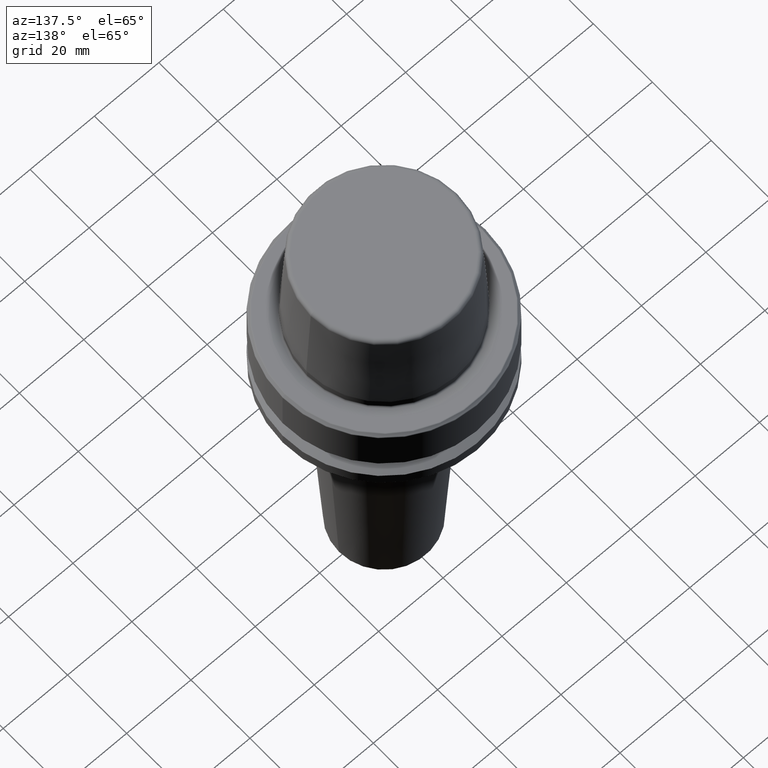
[diagram: clean part render]
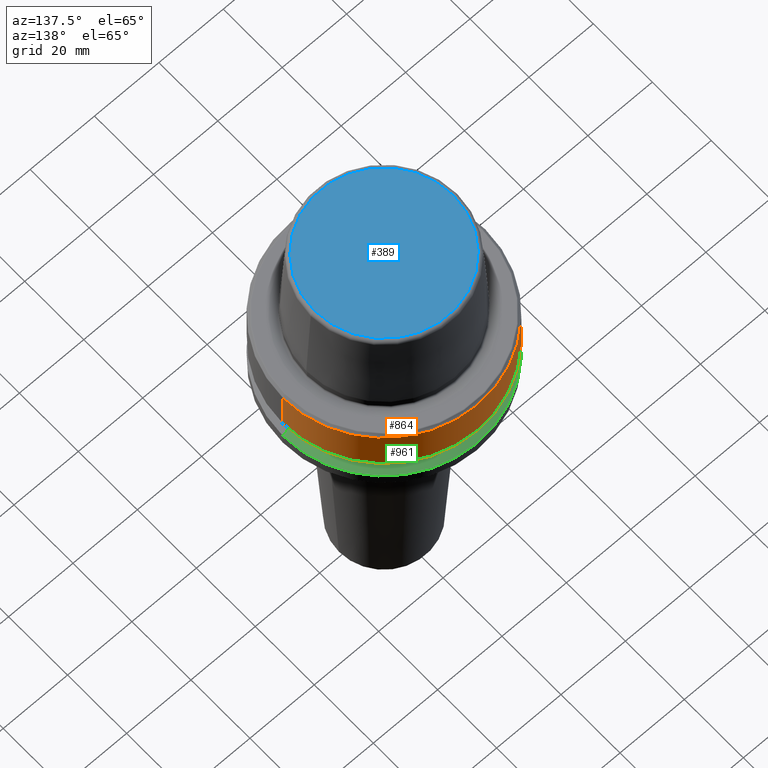
[diagram: same view with three faces highlighted in distinct colors, each labeled with its STEP entity id]
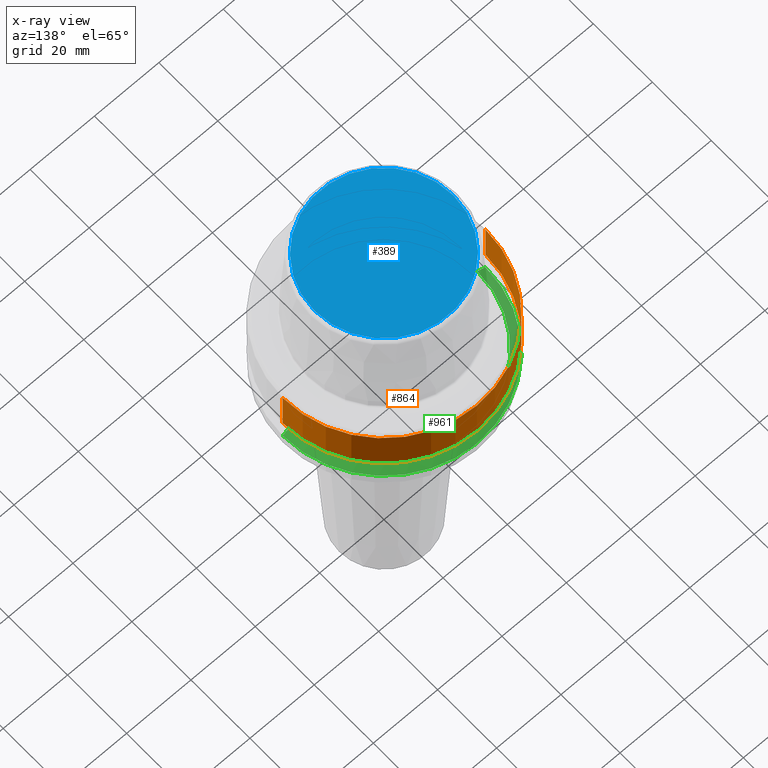
[diagram: x-ray of the same camera — body ghosted, the three highlighted faces saturated]
A machine part, auxiliary view with three faces highlighted in distinct colors.
The next image is the same camera in x-ray (body ghosted, the three faces saturated) — at least one of them is partly hidden behind the body in this view.
Their STEP definitions:

[orange] entity #864 — the highlighted cylindrical surface (partial cylindrical patch) has radius 31.5 mm, axis along (-0, -0, 1).
#25 = FACE_OUTER_BOUND ( 'NONE', #1129, .T. ) ;
#115 = EDGE_CURVE ( 'NONE', #1180, #655, #1093, .T. ) ;
#129 = LINE ( 'NONE', #499, #800 ) ;
#173 = EDGE_CURVE ( 'NONE', #1180, #894, #627, .T. ) ;
#176 = ORIENTED_EDGE ( 'NONE', *, *, #1032, .F. ) ;
#190 = DIRECTION ( 'NONE',  ( -0.0000000000000000000, -0.0000000000000000000, 1.000000000000000000 ) ) ;
#239 = EDGE_CURVE ( 'NONE', #655, #447, #129, .T. ) ;
#245 = AXIS2_PLACEMENT_3D ( 'NONE', #596, #579, #520 ) ;
#252 = ORIENTED_EDGE ( 'NONE', *, *, #239, .T. ) ;
#265 = DIRECTION ( 'NONE',  ( 1.000000000000000000, 0.0000000000000000000, 0.0000000000000000000 ) ) ;
#268 = DIRECTION ( 'NONE',  ( -0.0000000000000000000, -0.0000000000000000000, 1.000000000000000000 ) ) ;
#289 = VECTOR ( 'NONE', #1193, 1000.000000000000000 ) ;
#351 = ORIENTED_EDGE ( 'NONE', *, *, #115, .T. ) ;
#369 = CARTESIAN_POINT ( 'NONE',  ( 31.50000000000000000, 0.0000000000000000000, -14.62250092524070100 ) ) ;
#447 = VERTEX_POINT ( 'NONE', #910 ) ;
#499 = CARTESIAN_POINT ( 'NONE',  ( -31.50000000000000000, 3.857637417314162700E-015, 78.96908074195309300 ) ) ;
#520 = DIRECTION ( 'NONE',  ( 1.000000000000000000, 0.0000000000000000000, 0.0000000000000000000 ) ) ;
#529 = CARTESIAN_POINT ( 'NONE',  ( 31.50000000000000700, 0.0000000000000000000, -0.9656854249492363700 ) ) ;
#545 = DIRECTION ( 'NONE',  ( -0.0000000000000000000, -0.0000000000000000000, 1.000000000000000000 ) ) ;
#554 = CIRCLE ( 'NONE', #245, 31.50000000000000700 ) ;
#579 = DIRECTION ( 'NONE',  ( -0.0000000000000000000, -0.0000000000000000000, 1.000000000000000000 ) ) ;
#596 = CARTESIAN_POINT ( 'NONE',  ( 0.0000000000000000000, 0.0000000000000000000, -0.9656854249492363700 ) ) ;
#627 = LINE ( 'NONE', #721, #289 ) ;
#655 = VERTEX_POINT ( 'NONE', #748 ) ;
#718 = CARTESIAN_POINT ( 'NONE',  ( 0.0000000000000000000, 0.0000000000000000000, 78.96908074195309300 ) ) ;
#721 = CARTESIAN_POINT ( 'NONE',  ( 31.50000000000000000, 0.0000000000000000000, 78.96908074195309300 ) ) ;
#740 = AXIS2_PLACEMENT_3D ( 'NONE', #718, #268, #929 ) ;
#748 = CARTESIAN_POINT ( 'NONE',  ( -31.50000000000000000, 3.857637417314162700E-015, -14.62250092524070100 ) ) ;
#800 = VECTOR ( 'NONE', #545, 1000.000000000000000 ) ;
#864 = ADVANCED_FACE ( 'NONE', ( #25 ), #1043, .T. ) ;
#894 = VERTEX_POINT ( 'NONE', #529 ) ;
#910 = CARTESIAN_POINT ( 'NONE',  ( -31.50000000000000700, 3.857637417314163500E-015, -0.9656854249492363700 ) ) ;
#929 = DIRECTION ( 'NONE',  ( 1.000000000000000000, 0.0000000000000000000, 0.0000000000000000000 ) ) ;
#932 = CARTESIAN_POINT ( 'NONE',  ( 0.0000000000000000000, 0.0000000000000000000, -14.62250092524070100 ) ) ;
#1016 = AXIS2_PLACEMENT_3D ( 'NONE', #932, #190, #265 ) ;
#1032 = EDGE_CURVE ( 'NONE', #894, #447, #554, .T. ) ;
#1043 = CYLINDRICAL_SURFACE ( 'NONE', #740, 31.50000000000000000 ) ;
#1093 = CIRCLE ( 'NONE', #1016, 31.50000000000000000 ) ;
#1119 = ORIENTED_EDGE ( 'NONE', *, *, #173, .F. ) ;
#1129 = EDGE_LOOP ( 'NONE', ( #351, #252, #176, #1119 ) ) ;
#1180 = VERTEX_POINT ( 'NONE', #369 ) ;
#1193 = DIRECTION ( 'NONE',  ( -0.0000000000000000000, -0.0000000000000000000, 1.000000000000000000 ) ) ;

[blue] entity #389 — the highlighted planar face has unit normal (0, 0, -1).
#37 = FACE_OUTER_BOUND ( 'NONE', #585, .T. ) ;
#41 = DIRECTION ( 'NONE',  ( 1.000000000000000000, 0.0000000000000000000, 0.0000000000000000000 ) ) ;
#43 = DIRECTION ( 'NONE',  ( -0.0000000000000000000, -0.0000000000000000000, 1.000000000000000000 ) ) ;
#57 = CARTESIAN_POINT ( 'NONE',  ( 0.0000000000000000000, 0.0000000000000000000, 31.89999999999999900 ) ) ;
#120 = CARTESIAN_POINT ( 'NONE',  ( -21.58108272732117100, 2.716307157494421400E-015, 31.89999999999999900 ) ) ;
#186 = EDGE_CURVE ( 'NONE', #656, #1066, #850, .T. ) ;
#205 = AXIS2_PLACEMENT_3D ( 'NONE', #632, #629, #628 ) ;
#236 = CARTESIAN_POINT ( 'NONE',  ( 0.0000000000000000000, 0.0000000000000000000, 31.89999999999999900 ) ) ;
#313 = AXIS2_PLACEMENT_3D ( 'NONE', #236, #1190, #584 ) ;
#314 = EDGE_CURVE ( 'NONE', #1066, #656, #1071, .T. ) ;
#389 = ADVANCED_FACE ( 'NONE', ( #37 ), #927, .F. ) ;
#584 = DIRECTION ( 'NONE',  ( -1.000000000000000000, 0.0000000000000000000, -0.0000000000000000000 ) ) ;
#585 = EDGE_LOOP ( 'NONE', ( #621, #756 ) ) ;
#621 = ORIENTED_EDGE ( 'NONE', *, *, #186, .T. ) ;
#628 = DIRECTION ( 'NONE',  ( 1.000000000000000000, 0.0000000000000000000, 0.0000000000000000000 ) ) ;
#629 = DIRECTION ( 'NONE',  ( -0.0000000000000000000, -0.0000000000000000000, 1.000000000000000000 ) ) ;
#632 = CARTESIAN_POINT ( 'NONE',  ( 0.0000000000000000000, 0.0000000000000000000, 31.89999999999999900 ) ) ;
#656 = VERTEX_POINT ( 'NONE', #730 ) ;
#730 = CARTESIAN_POINT ( 'NONE',  ( 21.58108272732117100, 0.0000000000000000000, 31.89999999999999900 ) ) ;
#756 = ORIENTED_EDGE ( 'NONE', *, *, #314, .T. ) ;
#803 = AXIS2_PLACEMENT_3D ( 'NONE', #57, #43, #41 ) ;
#850 = CIRCLE ( 'NONE', #205, 21.58108272732117100 ) ;
#927 = PLANE ( 'NONE',  #313 ) ;
#1066 = VERTEX_POINT ( 'NONE', #120 ) ;
#1071 = CIRCLE ( 'NONE', #803, 21.58108272732117100 ) ;
#1190 = DIRECTION ( 'NONE',  ( 0.0000000000000000000, 0.0000000000000000000, -1.000000000000000000 ) ) ;

[green] entity #961 — the highlighted conical surface has half-angle 60 deg.
#9 = DIRECTION ( 'NONE',  ( -0.0000000000000000000, -0.0000000000000000000, 1.000000000000000000 ) ) ;
#32 = ORIENTED_EDGE ( 'NONE', *, *, #89, .T. ) ;
#58 = AXIS2_PLACEMENT_3D ( 'NONE', #128, #123, #109 ) ;
#73 = VERTEX_POINT ( 'NONE', #802 ) ;
#76 = VERTEX_POINT ( 'NONE', #795 ) ;
#89 = EDGE_CURVE ( 'NONE', #420, #76, #736, .T. ) ;
#101 = CARTESIAN_POINT ( 'NONE',  ( 0.0000000000000000000, 0.0000000000000000000, -19.90000000000001600 ) ) ;
#105 = ORIENTED_EDGE ( 'NONE', *, *, #973, .F. ) ;
#109 = DIRECTION ( 'NONE',  ( 1.000000000000000000, 0.0000000000000000000, 0.0000000000000000000 ) ) ;
#123 = DIRECTION ( 'NONE',  ( -0.0000000000000000000, -0.0000000000000000000, 1.000000000000000000 ) ) ;
#128 = CARTESIAN_POINT ( 'NONE',  ( 0.0000000000000000000, 0.0000000000000000000, -21.37749907475931700 ) ) ;
#215 = CIRCLE ( 'NONE', #1239, 28.94089653438085100 ) ;
#263 = CARTESIAN_POINT ( 'NONE',  ( 31.50000000000000000, 3.857637417314162700E-015, -21.37749907475931700 ) ) ;
#267 = DIRECTION ( 'NONE',  ( -0.8660254037844410400, 0.0000000000000000000, -0.4999999999999958400 ) ) ;
#296 = EDGE_LOOP ( 'NONE', ( #105, #32, #772, #602 ) ) ;
#302 = EDGE_CURVE ( 'NONE', #73, #1257, #408, .T. ) ;
#352 = CARTESIAN_POINT ( 'NONE',  ( -31.50000000000000000, 0.0000000000000000000, -21.37749907475931700 ) ) ;
#408 = LINE ( 'NONE', #352, #863 ) ;
#420 = VERTEX_POINT ( 'NONE', #976 ) ;
#522 = CONICAL_SURFACE ( 'NONE', #1177, 31.50000000000000000, 1.047197551196602500 ) ;
#602 = ORIENTED_EDGE ( 'NONE', *, *, #302, .F. ) ;
#614 = VECTOR ( 'NONE', #752, 1000.000000000000100 ) ;
#736 = LINE ( 'NONE', #263, #614 ) ;
#752 = DIRECTION ( 'NONE',  ( 0.8660254037844410400, 1.060575238724909700E-016, -0.4999999999999958400 ) ) ;
#772 = ORIENTED_EDGE ( 'NONE', *, *, #774, .T. ) ;
#774 = EDGE_CURVE ( 'NONE', #76, #1257, #924, .T. ) ;
#795 = CARTESIAN_POINT ( 'NONE',  ( 31.50000000000000000, 0.0000000000000000000, -21.37749907475931700 ) ) ;
#802 = CARTESIAN_POINT ( 'NONE',  ( -28.94089653438085100, 0.0000000000000000000, -19.90000000000001600 ) ) ;
#822 = FACE_OUTER_BOUND ( 'NONE', #296, .T. ) ;
#863 = VECTOR ( 'NONE', #267, 1000.000000000000100 ) ;
#886 = DIRECTION ( 'NONE',  ( -1.000000000000000000, 0.0000000000000000000, 0.0000000000000000000 ) ) ;
#924 = CIRCLE ( 'NONE', #58, 31.50000000000000000 ) ;
#961 = ADVANCED_FACE ( 'NONE', ( #822 ), #522, .T. ) ;
#973 = EDGE_CURVE ( 'NONE', #420, #73, #215, .T. ) ;
#976 = CARTESIAN_POINT ( 'NONE',  ( 28.94089653438085100, 3.700937523921292900E-015, -19.90000000000001600 ) ) ;
#1079 = DIRECTION ( 'NONE',  ( 0.0000000000000000000, 0.0000000000000000000, -1.000000000000000000 ) ) ;
#1173 = CARTESIAN_POINT ( 'NONE',  ( 0.0000000000000000000, 0.0000000000000000000, -21.37749907475931700 ) ) ;
#1177 = AXIS2_PLACEMENT_3D ( 'NONE', #1173, #1079, #886 ) ;
#1212 = CARTESIAN_POINT ( 'NONE',  ( -31.50000000000000000, 3.857637417314162700E-015, -21.37749907475931700 ) ) ;
#1239 = AXIS2_PLACEMENT_3D ( 'NONE', #101, #9, #1251 ) ;
#1251 = DIRECTION ( 'NONE',  ( 1.000000000000000000, 0.0000000000000000000, 0.0000000000000000000 ) ) ;
#1257 = VERTEX_POINT ( 'NONE', #1212 ) ;